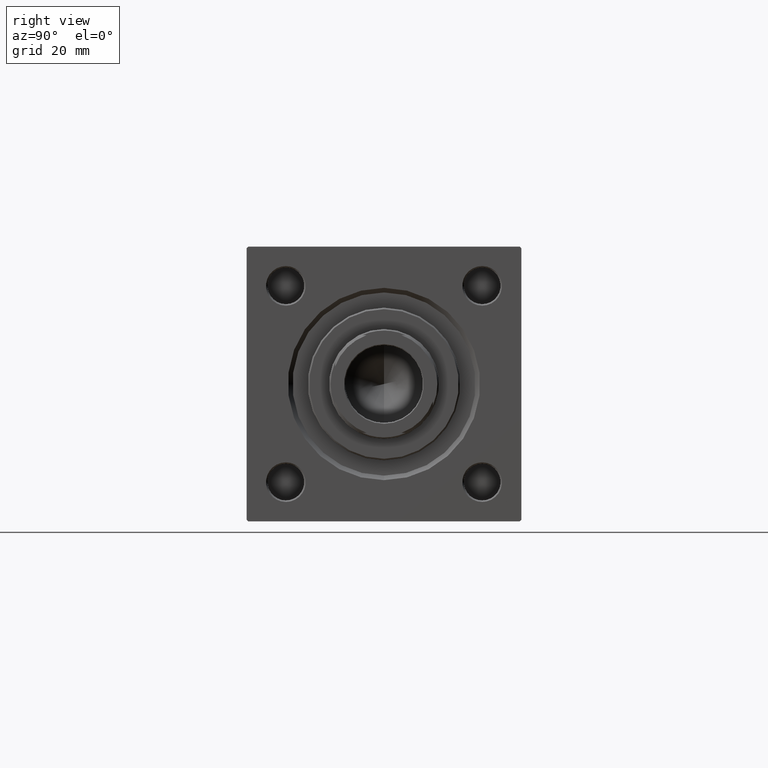
[diagram: clean part render]
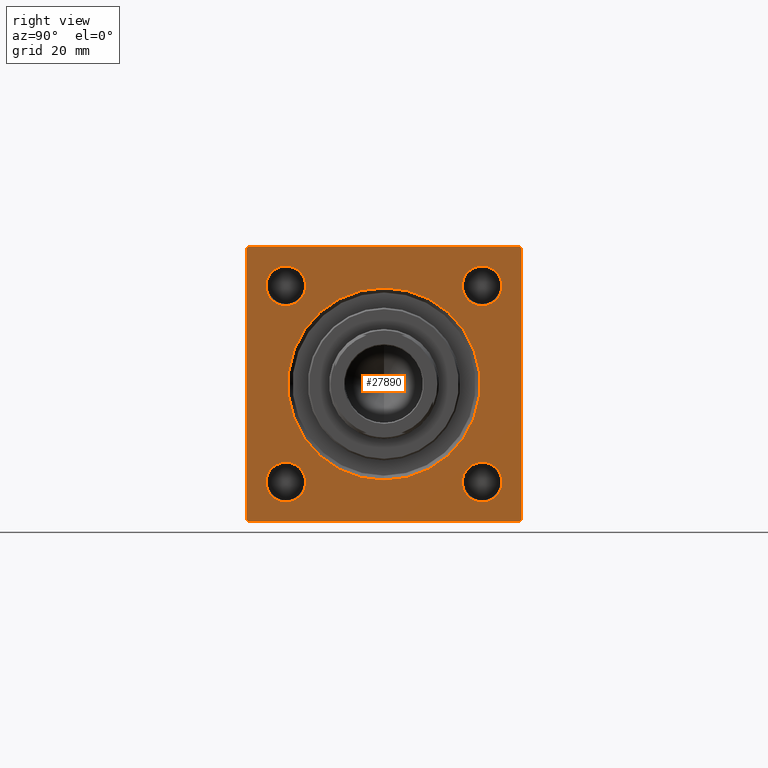
[diagram: same view with one face highlighted and labeled with its STEP entity id]
A machine part, right view. The second image highlights one B-rep face of the part: STEP entity #27890.
In plain terms, the highlighted planar face has unit normal (-1, 0, 0).
Its self-contained STEP definition (entity closure, byte-faithful):
#712 = CIRCLE ( 'NONE', #6428, 6.499999999999977796 ) ;
#889 = CIRCLE ( 'NONE', #31719, 31.49999999999997158 ) ;
#1029 = VECTOR ( 'NONE', #37475, 1000.000000000000000 ) ;
#1497 = DIRECTION ( 'NONE',  ( 0.000000000000000000, 0.000000000000000000, -1.000000000000000000 ) ) ;
#1542 = CARTESIAN_POINT ( 'NONE',  ( 155.0000000000000000, 0.000000000000000000, 0.000000000000000000 ) ) ;
#2282 = ORIENTED_EDGE ( 'NONE', *, *, #6014, .T. ) ;
#2507 = VERTEX_POINT ( 'NONE', #14546 ) ;
#3231 = CIRCLE ( 'NONE', #34842, 6.499999999999977796 ) ;
#3458 = VERTEX_POINT ( 'NONE', #44363 ) ;
#3540 = LINE ( 'NONE', #37804, #21628 ) ;
#3555 = CIRCLE ( 'NONE', #9925, 6.499999999999977796 ) ;
#3731 = FACE_BOUND ( 'NONE', #11744, .T. ) ;
#4525 = VECTOR ( 'NONE', #6648, 1000.000000000000000 ) ;
#5036 = DIRECTION ( 'NONE',  ( -1.000000000000000000, 0.000000000000000000, -0.000000000000000000 ) ) ;
#5222 = DIRECTION ( 'NONE',  ( -1.000000000000000000, 0.000000000000000000, -0.000000000000000000 ) ) ;
#6014 = EDGE_CURVE ( 'NONE', #36294, #35076, #3231, .T. ) ;
#6169 = CIRCLE ( 'NONE', #45091, 6.499999999999977796 ) ;
#6239 = DIRECTION ( 'NONE',  ( -1.000000000000000000, 0.000000000000000000, -0.000000000000000000 ) ) ;
#6428 = AXIS2_PLACEMENT_3D ( 'NONE', #13144, #10326, #44107 ) ;
#6648 = DIRECTION ( 'NONE',  ( 0.000000000000000000, -1.000000000000000000, -1.541976423090495387E-16 ) ) ;
#6860 = EDGE_CURVE ( 'NONE', #7365, #21253, #22323, .T. ) ;
#7028 = CARTESIAN_POINT ( 'NONE',  ( 155.0000000000000000, 0.000000000000000000, -31.49999999999997158 ) ) ;
#7365 = VERTEX_POINT ( 'NONE', #46609 ) ;
#7389 = EDGE_LOOP ( 'NONE', ( #14236, #25557, #40784, #46419, #31486, #26301, #38807, #48913 ) ) ;
#8120 = EDGE_CURVE ( 'NONE', #2507, #12976, #45738, .T. ) ;
#8286 = EDGE_CURVE ( 'NONE', #40830, #39914, #6169, .T. ) ;
#8342 = CARTESIAN_POINT ( 'NONE',  ( 155.0000000000000000, -32.14999999999999858, 32.14999999999999858 ) ) ;
#8619 = ORIENTED_EDGE ( 'NONE', *, *, #28146, .T. ) ;
#9056 = CARTESIAN_POINT ( 'NONE',  ( 155.0000000000000000, -32.14999999999999858, -38.64999999999997726 ) ) ;
#9356 = AXIS2_PLACEMENT_3D ( 'NONE', #32047, #21374, #40172 ) ;
#9925 = AXIS2_PLACEMENT_3D ( 'NONE', #37466, #6239, #21724 ) ;
#10261 = EDGE_LOOP ( 'NONE', ( #26350, #45947 ) ) ;
#10326 = DIRECTION ( 'NONE',  ( -1.000000000000000000, 0.000000000000000000, -0.000000000000000000 ) ) ;
#10360 = EDGE_CURVE ( 'NONE', #45761, #33575, #3540, .T. ) ;
#10376 = DIRECTION ( 'NONE',  ( -1.000000000000000000, 0.000000000000000000, -0.000000000000000000 ) ) ;
#11154 = LINE ( 'NONE', #34515, #32441 ) ;
#11190 = DIRECTION ( 'NONE',  ( -1.000000000000000000, 0.000000000000000000, -0.000000000000000000 ) ) ;
#11319 = EDGE_LOOP ( 'NONE', ( #47393, #32779 ) ) ;
#11744 = EDGE_LOOP ( 'NONE', ( #46223, #27530 ) ) ;
#12199 = CARTESIAN_POINT ( 'NONE',  ( 155.0000000000000000, -32.14999999999999858, 32.14999999999999858 ) ) ;
#12751 = CARTESIAN_POINT ( 'NONE',  ( 155.0000000000000000, -45.00000000000000000, 44.50000000000002842 ) ) ;
#12871 = CIRCLE ( 'NONE', #25844, 6.499999999999977796 ) ;
#12976 = VERTEX_POINT ( 'NONE', #30721 ) ;
#13144 = CARTESIAN_POINT ( 'NONE',  ( 155.0000000000000000, 32.14999999999999147, 32.14999999999999858 ) ) ;
#14236 = ORIENTED_EDGE ( 'NONE', *, *, #43715, .T. ) ;
#14546 = CARTESIAN_POINT ( 'NONE',  ( 155.0000000000000000, 44.50000000000000000, -44.99999999999998579 ) ) ;
#14609 = AXIS2_PLACEMENT_3D ( 'NONE', #8342, #5036, #20270 ) ;
#15008 = DIRECTION ( 'NONE',  ( 0.000000000000000000, 0.000000000000000000, 1.000000000000000000 ) ) ;
#15169 = FACE_BOUND ( 'NONE', #31431, .T. ) ;
#15520 = CARTESIAN_POINT ( 'NONE',  ( 155.0000000000000000, 32.14999999999999147, -32.14999999999999858 ) ) ;
#15699 = EDGE_CURVE ( 'NONE', #24602, #24811, #12871, .T. ) ;
#16099 = CARTESIAN_POINT ( 'NONE',  ( 155.0000000000000000, 3.857637417314158745E-15, 31.49999999999997158 ) ) ;
#18052 = CIRCLE ( 'NONE', #23733, 6.499999999999977796 ) ;
#18984 = FACE_BOUND ( 'NONE', #11319, .T. ) ;
#19225 = PLANE ( 'NONE',  #46429 ) ;
#19698 = ORIENTED_EDGE ( 'NONE', *, *, #46226, .T. ) ;
#20270 = DIRECTION ( 'NONE',  ( 0.000000000000000000, 0.000000000000000000, 1.000000000000000000 ) ) ;
#20375 = DIRECTION ( 'NONE',  ( -0.000000000000000000, -0.7071067811865474617, -0.7071067811865474617 ) ) ;
#20704 = DIRECTION ( 'NONE',  ( 0.000000000000000000, 0.000000000000000000, 1.000000000000000000 ) ) ;
#21253 = VERTEX_POINT ( 'NONE', #33066 ) ;
#21309 = CARTESIAN_POINT ( 'NONE',  ( 155.0000000000000000, -45.00000000000000000, 45.00000000000000000 ) ) ;
#21374 = DIRECTION ( 'NONE',  ( -1.000000000000000000, 0.000000000000000000, -0.000000000000000000 ) ) ;
#21488 = EDGE_CURVE ( 'NONE', #3458, #12976, #11154, .T. ) ;
#21628 = VECTOR ( 'NONE', #33751, 1000.000000000000114 ) ;
#21654 = EDGE_CURVE ( 'NONE', #39914, #40830, #46218, .T. ) ;
#21724 = DIRECTION ( 'NONE',  ( 0.000000000000000000, 0.000000000000000000, 1.000000000000000000 ) ) ;
#22097 = DIRECTION ( 'NONE',  ( 0.000000000000000000, 0.000000000000000000, 1.000000000000000000 ) ) ;
#22259 = CARTESIAN_POINT ( 'NONE',  ( 155.0000000000000000, 45.00000000000000000, -44.49999999999998579 ) ) ;
#22323 = CIRCLE ( 'NONE', #9356, 6.499999999999977796 ) ;
#22938 = CARTESIAN_POINT ( 'NONE',  ( 155.0000000000000000, -32.14999999999999858, 38.64999999999997726 ) ) ;
#23037 = FACE_BOUND ( 'NONE', #46912, .T. ) ;
#23242 = CARTESIAN_POINT ( 'NONE',  ( 155.0000000000000000, -44.50000000000000000, 45.00000000000000000 ) ) ;
#23733 = AXIS2_PLACEMENT_3D ( 'NONE', #15520, #11190, #15008 ) ;
#24602 = VERTEX_POINT ( 'NONE', #26099 ) ;
#24811 = VERTEX_POINT ( 'NONE', #9056 ) ;
#25557 = ORIENTED_EDGE ( 'NONE', *, *, #21488, .T. ) ;
#25821 = LINE ( 'NONE', #22259, #28388 ) ;
#25844 = AXIS2_PLACEMENT_3D ( 'NONE', #39011, #30909, #43310 ) ;
#26099 = CARTESIAN_POINT ( 'NONE',  ( 155.0000000000000000, -32.14999999999999858, -25.65000000000001990 ) ) ;
#26121 = CIRCLE ( 'NONE', #30190, 31.49999999999997158 ) ;
#26301 = ORIENTED_EDGE ( 'NONE', *, *, #10360, .T. ) ;
#26350 = ORIENTED_EDGE ( 'NONE', *, *, #31108, .T. ) ;
#26588 = FACE_OUTER_BOUND ( 'NONE', #7389, .T. ) ;
#26641 = DIRECTION ( 'NONE',  ( 0.000000000000000000, 0.7071067811865474617, -0.7071067811865474617 ) ) ;
#27060 = VERTEX_POINT ( 'NONE', #7028 ) ;
#27292 = EDGE_CURVE ( 'NONE', #35269, #27060, #26121, .T. ) ;
#27530 = ORIENTED_EDGE ( 'NONE', *, *, #27292, .T. ) ;
#27688 = DIRECTION ( 'NONE',  ( -1.000000000000000000, 0.000000000000000000, -0.000000000000000000 ) ) ;
#27890 = ADVANCED_FACE ( 'NONE', ( #23037, #18984, #38514, #15169, #3731, #26588 ), #19225, .F. ) ;
#28146 = EDGE_CURVE ( 'NONE', #21253, #7365, #18052, .T. ) ;
#28388 = VECTOR ( 'NONE', #37744, 1000.000000000000114 ) ;
#29096 = CARTESIAN_POINT ( 'NONE',  ( 155.0000000000000000, 32.14999999999999147, 25.65000000000001990 ) ) ;
#29110 = CARTESIAN_POINT ( 'NONE',  ( 155.0000000000000000, 45.00000000000000000, 45.00000000000001421 ) ) ;
#30190 = AXIS2_PLACEMENT_3D ( 'NONE', #40013, #5222, #20704 ) ;
#30721 = CARTESIAN_POINT ( 'NONE',  ( 155.0000000000000000, -44.50000000000002842, -45.00000000000000000 ) ) ;
#30909 = DIRECTION ( 'NONE',  ( -1.000000000000000000, 0.000000000000000000, -0.000000000000000000 ) ) ;
#31108 = EDGE_CURVE ( 'NONE', #24811, #24602, #3555, .T. ) ;
#31431 = EDGE_LOOP ( 'NONE', ( #48015, #8619 ) ) ;
#31435 = CARTESIAN_POINT ( 'NONE',  ( 155.0000000000000000, 45.00000000000000000, -44.49999999999995737 ) ) ;
#31486 = ORIENTED_EDGE ( 'NONE', *, *, #32121, .F. ) ;
#31719 = AXIS2_PLACEMENT_3D ( 'NONE', #1542, #49006, #22097 ) ;
#32047 = CARTESIAN_POINT ( 'NONE',  ( 155.0000000000000000, 32.14999999999999147, -32.14999999999999858 ) ) ;
#32121 = EDGE_CURVE ( 'NONE', #45761, #46102, #49140, .T. ) ;
#32441 = VECTOR ( 'NONE', #26641, 1000.000000000000114 ) ;
#32740 = LINE ( 'NONE', #21309, #40416 ) ;
#32779 = ORIENTED_EDGE ( 'NONE', *, *, #8286, .T. ) ;
#33066 = CARTESIAN_POINT ( 'NONE',  ( 155.0000000000000000, 32.14999999999999147, -25.65000000000001990 ) ) ;
#33575 = VERTEX_POINT ( 'NONE', #43711 ) ;
#33751 = DIRECTION ( 'NONE',  ( 0.000000000000000000, -0.7071067811865474617, 0.7071067811865474617 ) ) ;
#34515 = CARTESIAN_POINT ( 'NONE',  ( 155.0000000000000000, -44.50000000000005684, -45.00000000000000000 ) ) ;
#34716 = DIRECTION ( 'NONE',  ( -1.000000000000000000, 0.000000000000000000, -0.000000000000000000 ) ) ;
#34740 = VECTOR ( 'NONE', #37029, 1000.000000000000000 ) ;
#34842 = AXIS2_PLACEMENT_3D ( 'NONE', #45151, #10376, #36791 ) ;
#35076 = VERTEX_POINT ( 'NONE', #29096 ) ;
#35269 = VERTEX_POINT ( 'NONE', #16099 ) ;
#35558 = DIRECTION ( 'NONE',  ( 0.000000000000000000, 0.000000000000000000, 1.000000000000000000 ) ) ;
#36294 = VERTEX_POINT ( 'NONE', #46762 ) ;
#36791 = DIRECTION ( 'NONE',  ( 0.000000000000000000, 0.000000000000000000, 1.000000000000000000 ) ) ;
#37029 = DIRECTION ( 'NONE',  ( 0.000000000000000000, -1.000000000000000000, -1.541976423090495387E-16 ) ) ;
#37466 = CARTESIAN_POINT ( 'NONE',  ( 155.0000000000000000, -32.14999999999999858, -32.14999999999999858 ) ) ;
#37475 = DIRECTION ( 'NONE',  ( 0.000000000000000000, 0.000000000000000000, -1.000000000000000000 ) ) ;
#37744 = DIRECTION ( 'NONE',  ( -0.000000000000000000, 0.7071067811865474617, 0.7071067811865474617 ) ) ;
#37804 = CARTESIAN_POINT ( 'NONE',  ( 155.0000000000000000, 44.50000000000002842, 45.00000000000001421 ) ) ;
#37860 = CARTESIAN_POINT ( 'NONE',  ( 155.0000000000000000, 45.00000000000000000, -44.99999999999998579 ) ) ;
#38514 = FACE_BOUND ( 'NONE', #10261, .T. ) ;
#38807 = ORIENTED_EDGE ( 'NONE', *, *, #43705, .T. ) ;
#39011 = CARTESIAN_POINT ( 'NONE',  ( 155.0000000000000000, -32.14999999999999858, -32.14999999999999858 ) ) ;
#39618 = VECTOR ( 'NONE', #20375, 1000.000000000000114 ) ;
#39914 = VERTEX_POINT ( 'NONE', #49902 ) ;
#40013 = CARTESIAN_POINT ( 'NONE',  ( 155.0000000000000000, 0.000000000000000000, 0.000000000000000000 ) ) ;
#40172 = DIRECTION ( 'NONE',  ( 0.000000000000000000, 0.000000000000000000, 1.000000000000000000 ) ) ;
#40416 = VECTOR ( 'NONE', #1497, 1000.000000000000000 ) ;
#40603 = CARTESIAN_POINT ( 'NONE',  ( 155.0000000000000000, 45.00000000000000000, 45.00000000000001421 ) ) ;
#40670 = VERTEX_POINT ( 'NONE', #23242 ) ;
#40784 = ORIENTED_EDGE ( 'NONE', *, *, #8120, .F. ) ;
#40830 = VERTEX_POINT ( 'NONE', #22938 ) ;
#41816 = CARTESIAN_POINT ( 'NONE',  ( 155.0000000000000000, 0.000000000000000000, 0.000000000000000000 ) ) ;
#43310 = DIRECTION ( 'NONE',  ( 0.000000000000000000, 0.000000000000000000, 1.000000000000000000 ) ) ;
#43467 = LINE ( 'NONE', #12751, #39618 ) ;
#43705 = EDGE_CURVE ( 'NONE', #33575, #40670, #44152, .T. ) ;
#43711 = CARTESIAN_POINT ( 'NONE',  ( 155.0000000000000000, 44.50000000000002842, 45.00000000000001421 ) ) ;
#43715 = EDGE_CURVE ( 'NONE', #48031, #3458, #32740, .T. ) ;
#44107 = DIRECTION ( 'NONE',  ( 0.000000000000000000, 0.000000000000000000, 1.000000000000000000 ) ) ;
#44152 = LINE ( 'NONE', #40603, #34740 ) ;
#44363 = CARTESIAN_POINT ( 'NONE',  ( 155.0000000000000000, -45.00000000000000000, -44.50000000000002842 ) ) ;
#45091 = AXIS2_PLACEMENT_3D ( 'NONE', #12199, #27688, #35558 ) ;
#45151 = CARTESIAN_POINT ( 'NONE',  ( 155.0000000000000000, 32.14999999999999147, 32.14999999999999858 ) ) ;
#45738 = LINE ( 'NONE', #37860, #4525 ) ;
#45761 = VERTEX_POINT ( 'NONE', #47527 ) ;
#45771 = EDGE_CURVE ( 'NONE', #40670, #48031, #43467, .T. ) ;
#45947 = ORIENTED_EDGE ( 'NONE', *, *, #15699, .T. ) ;
#46102 = VERTEX_POINT ( 'NONE', #31435 ) ;
#46218 = CIRCLE ( 'NONE', #14609, 6.499999999999977796 ) ;
#46223 = ORIENTED_EDGE ( 'NONE', *, *, #50234, .T. ) ;
#46226 = EDGE_CURVE ( 'NONE', #35076, #36294, #712, .T. ) ;
#46419 = ORIENTED_EDGE ( 'NONE', *, *, #48116, .T. ) ;
#46429 = AXIS2_PLACEMENT_3D ( 'NONE', #41816, #34716, #50202 ) ;
#46609 = CARTESIAN_POINT ( 'NONE',  ( 155.0000000000000000, 32.14999999999999147, -38.64999999999997726 ) ) ;
#46762 = CARTESIAN_POINT ( 'NONE',  ( 155.0000000000000000, 32.14999999999999147, 38.64999999999997726 ) ) ;
#46912 = EDGE_LOOP ( 'NONE', ( #19698, #2282 ) ) ;
#47393 = ORIENTED_EDGE ( 'NONE', *, *, #21654, .T. ) ;
#47527 = CARTESIAN_POINT ( 'NONE',  ( 155.0000000000000000, 45.00000000000000000, 44.50000000000004263 ) ) ;
#48015 = ORIENTED_EDGE ( 'NONE', *, *, #6860, .T. ) ;
#48031 = VERTEX_POINT ( 'NONE', #49423 ) ;
#48116 = EDGE_CURVE ( 'NONE', #2507, #46102, #25821, .T. ) ;
#48913 = ORIENTED_EDGE ( 'NONE', *, *, #45771, .T. ) ;
#49006 = DIRECTION ( 'NONE',  ( -1.000000000000000000, 0.000000000000000000, -0.000000000000000000 ) ) ;
#49140 = LINE ( 'NONE', #29110, #1029 ) ;
#49423 = CARTESIAN_POINT ( 'NONE',  ( 155.0000000000000000, -45.00000000000000000, 44.50000000000002842 ) ) ;
#49902 = CARTESIAN_POINT ( 'NONE',  ( 155.0000000000000000, -32.14999999999999858, 25.65000000000001990 ) ) ;
#50202 = DIRECTION ( 'NONE',  ( -0.000000000000000000, 0.000000000000000000, 1.000000000000000000 ) ) ;
#50234 = EDGE_CURVE ( 'NONE', #27060, #35269, #889, .T. ) ;